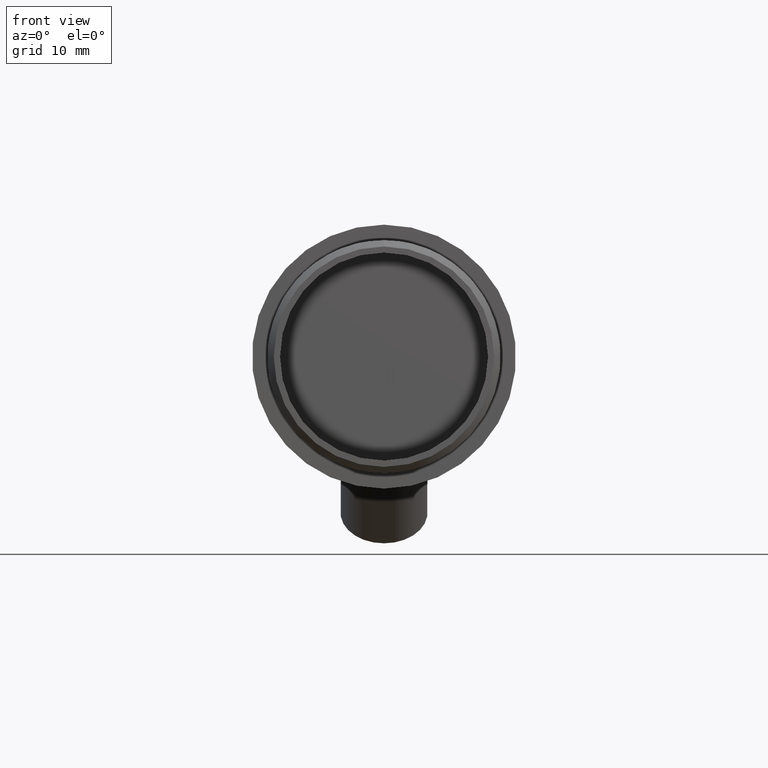
[diagram: clean part render]
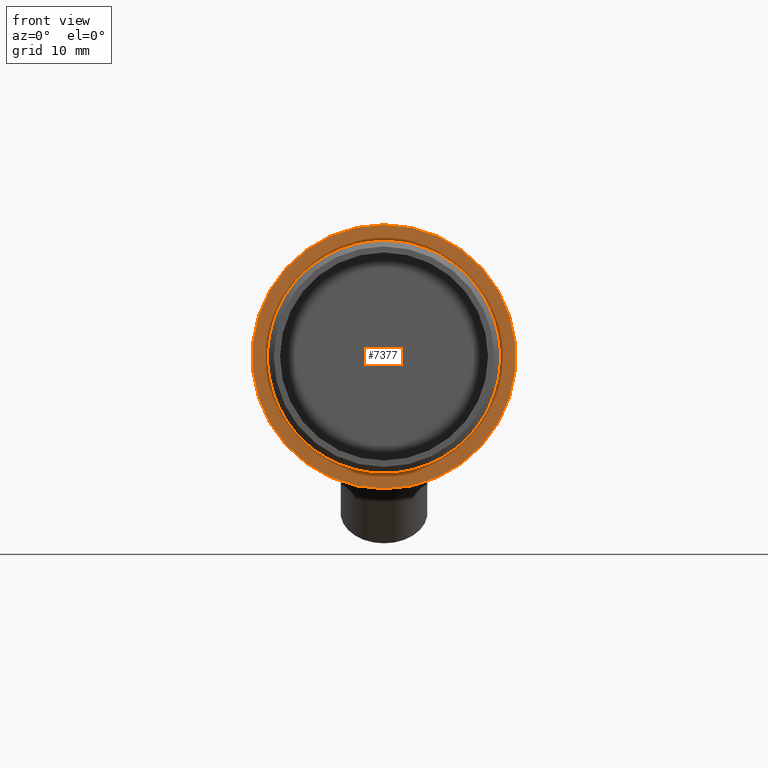
[diagram: same view with one face highlighted and labeled with its STEP entity id]
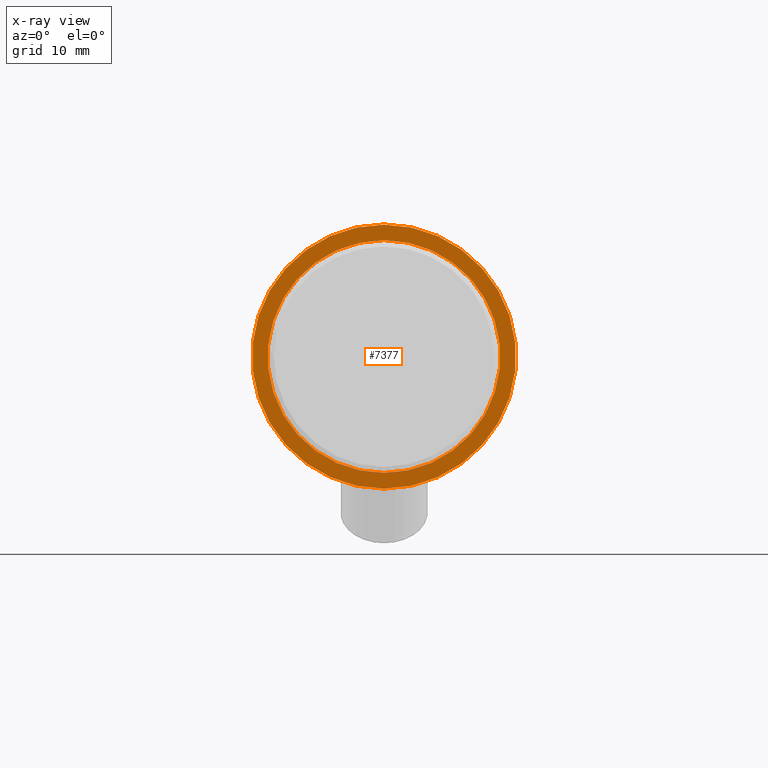
[diagram: x-ray of the same camera — body ghosted, the highlighted face saturated]
A machine part, front view. The second image highlights one B-rep face of the part: STEP entity #7377.
The next image is the same camera in x-ray: the body ghosted, the highlighted face saturated — about 1% of this face is hidden behind the body in this view.
In plain terms, the highlighted planar face has unit normal (-0, 1, 0).
Its self-contained STEP definition (entity closure, byte-faithful):
#270 = DIRECTION ( 'NONE',  ( 0.000000000000000000, -1.224646799147353207E-16, 1.000000000000000000 ) ) ;
#668 = CIRCLE ( 'NONE', #3538, 21.19999999999999929 ) ;
#1037 = AXIS2_PLACEMENT_3D ( 'NONE', #4568, #5905, #14354 ) ;
#1209 = EDGE_LOOP ( 'NONE', ( #9213, #8271 ) ) ;
#1219 = CIRCLE ( 'NONE', #1037, 18.69999999999999929 ) ;
#1674 = VERTEX_POINT ( 'NONE', #11366 ) ;
#1954 = DIRECTION ( 'NONE',  ( 0.000000000000000000, -1.391489419232733040E-16, 1.000000000000000000 ) ) ;
#2101 = CARTESIAN_POINT ( 'NONE',  ( 0.000000000000000000, -7.000000000000005329, 21.19999999999999929 ) ) ;
#2953 = CIRCLE ( 'NONE', #7347, 21.19999999999999929 ) ;
#3051 = DIRECTION ( 'NONE',  ( 0.000000000000000000, -1.000000000000000000, -1.224646799147353207E-16 ) ) ;
#3538 = AXIS2_PLACEMENT_3D ( 'NONE', #11890, #9558, #10726 ) ;
#3814 = PLANE ( 'NONE',  #7952 ) ;
#3863 = CARTESIAN_POINT ( 'NONE',  ( 0.000000000000000000, -7.000000000000000888, -8.572527594031474176E-16 ) ) ;
#4153 = VERTEX_POINT ( 'NONE', #12221 ) ;
#4252 = ORIENTED_EDGE ( 'NONE', *, *, #5343, .F. ) ;
#4440 = CARTESIAN_POINT ( 'NONE',  ( 0.000000000000000000, -7.000000000000001776, 18.69999999999999929 ) ) ;
#4568 = CARTESIAN_POINT ( 'NONE',  ( 0.000000000000000000, -6.999999999999999112, -8.572527594031476148E-16 ) ) ;
#4667 = FACE_OUTER_BOUND ( 'NONE', #1209, .T. ) ;
#5343 = EDGE_CURVE ( 'NONE', #1674, #14453, #5846, .T. ) ;
#5846 = CIRCLE ( 'NONE', #9908, 18.69999999999999929 ) ;
#5905 = DIRECTION ( 'NONE',  ( 0.000000000000000000, -1.000000000000000000, -1.224646799147353207E-16 ) ) ;
#6707 = EDGE_LOOP ( 'NONE', ( #15172, #4252 ) ) ;
#7006 = CARTESIAN_POINT ( 'NONE',  ( 0.000000000000000000, -7.000000000000002665, -8.572527594031475162E-16 ) ) ;
#7347 = AXIS2_PLACEMENT_3D ( 'NONE', #7006, #11858, #13064 ) ;
#7377 = ADVANCED_FACE ( 'NONE', ( #8699, #4667 ), #3814, .F. ) ;
#7647 = EDGE_CURVE ( 'NONE', #12946, #4153, #2953, .T. ) ;
#7952 = AXIS2_PLACEMENT_3D ( 'NONE', #3863, #9979, #270 ) ;
#8182 = EDGE_CURVE ( 'NONE', #4153, #12946, #668, .T. ) ;
#8271 = ORIENTED_EDGE ( 'NONE', *, *, #8182, .F. ) ;
#8699 = FACE_BOUND ( 'NONE', #6707, .T. ) ;
#9213 = ORIENTED_EDGE ( 'NONE', *, *, #7647, .F. ) ;
#9531 = EDGE_CURVE ( 'NONE', #14453, #1674, #1219, .T. ) ;
#9558 = DIRECTION ( 'NONE',  ( -0.000000000000000000, 1.000000000000000000, 1.224646799147353207E-16 ) ) ;
#9908 = AXIS2_PLACEMENT_3D ( 'NONE', #13911, #3051, #1954 ) ;
#9979 = DIRECTION ( 'NONE',  ( -0.000000000000000000, 1.000000000000000000, 1.224646799147353207E-16 ) ) ;
#10726 = DIRECTION ( 'NONE',  ( 0.000000000000000000, -1.227398685832646557E-16, 1.000000000000000000 ) ) ;
#11366 = CARTESIAN_POINT ( 'NONE',  ( 2.290089514405550505E-15, -6.999999999999996447, -18.69999999999999929 ) ) ;
#11858 = DIRECTION ( 'NONE',  ( -0.000000000000000000, 1.000000000000000000, 1.224646799147353207E-16 ) ) ;
#11890 = CARTESIAN_POINT ( 'NONE',  ( 0.000000000000000000, -7.000000000000002665, -8.572527594031475162E-16 ) ) ;
#12221 = CARTESIAN_POINT ( 'NONE',  ( 2.596251214192388770E-15, -7.000000000000000000, -21.19999999999999929 ) ) ;
#12946 = VERTEX_POINT ( 'NONE', #2101 ) ;
#13064 = DIRECTION ( 'NONE',  ( 0.000000000000000000, -1.227398685832646557E-16, 1.000000000000000000 ) ) ;
#13911 = CARTESIAN_POINT ( 'NONE',  ( 0.000000000000000000, -6.999999999999999112, -8.572527594031476148E-16 ) ) ;
#14354 = DIRECTION ( 'NONE',  ( 0.000000000000000000, -1.391489419232733040E-16, 1.000000000000000000 ) ) ;
#14453 = VERTEX_POINT ( 'NONE', #4440 ) ;
#15172 = ORIENTED_EDGE ( 'NONE', *, *, #9531, .F. ) ;